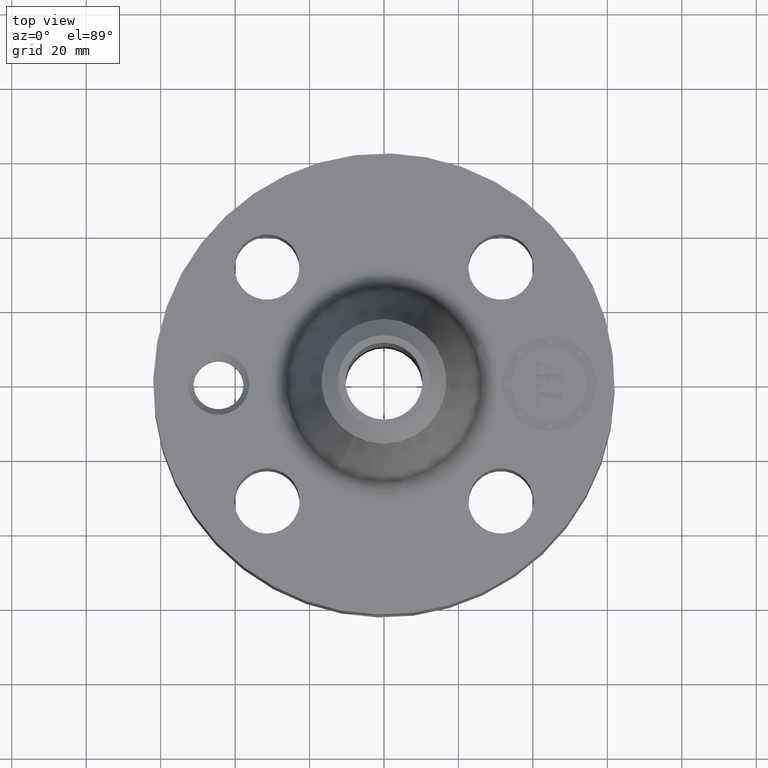
[diagram: clean part render]
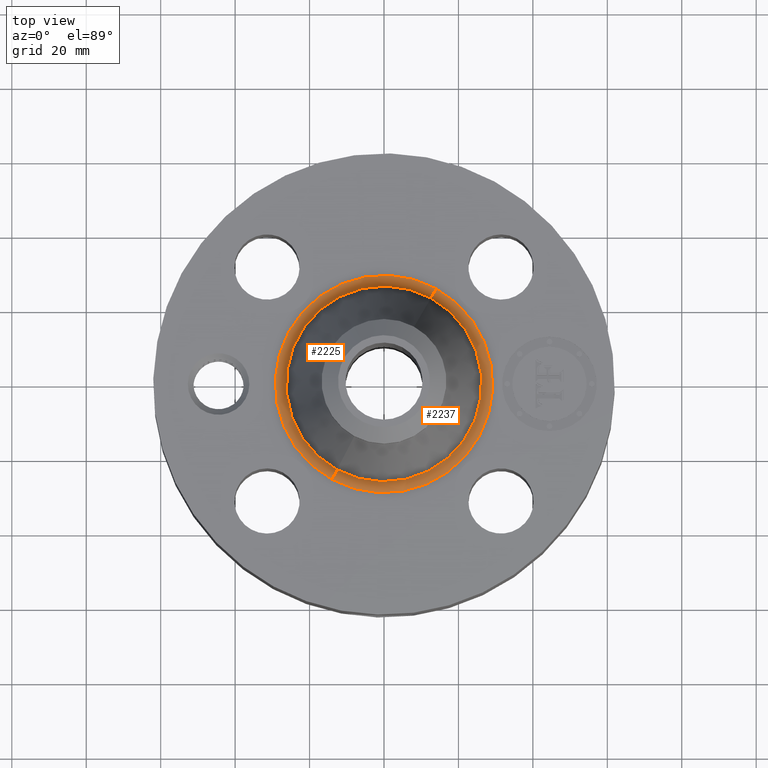
[diagram: same view with one multi-face feature highlighted, each face labeled with its STEP entity id]
A machine part, top view. The highlighted faces form ONE feature: a constant-radius fillet chain: 2 tangent blend faces with common blend radius 3.048 mm. The faces share edges in the B-rep.
Their STEP definitions:
[1] entity #2225 (Torus):
#1717=AXIS2_PLACEMENT_3D('Circle Axis2P3D',#1715,#1716,$) ;
#2198=AXIS2_PLACEMENT_3D('Torus Axis2P3D',#2195,#2196,#2197) ;
#2202=AXIS2_PLACEMENT_3D('Circle Axis2P3D',#2200,#2201,$) ;
#2211=AXIS2_PLACEMENT_3D('Circle Axis2P3D',#2209,#2210,$) ;
#2216=AXIS2_PLACEMENT_3D('Circle Axis2P3D',#2214,#2215,$) ;
#1715=CARTESIAN_POINT('Axis2P3D Location',(0.,0.,1.83660249647)) ;
#1719=CARTESIAN_POINT('Vertex',(-0.496160361728,-0.908215450144,1.83660249647)) ;
#1721=CARTESIAN_POINT('Vertex',(0.496160361728,0.908215450144,1.83660249647)) ;
#2195=CARTESIAN_POINT('Axis2P3D Location',(0.,0.,1.87000000001)) ;
#2200=CARTESIAN_POINT('Axis2P3D Location',(0.,0.,1.75000000001)) ;
#2204=CARTESIAN_POINT('Vertex',(-0.551418406817,-1.0093646232,1.75000000001)) ;
#2206=CARTESIAN_POINT('Vertex',(0.551418406817,1.0093646232,1.75000000001)) ;
#2209=CARTESIAN_POINT('Axis2P3D Location',(-0.551418406817,-1.0093646232,1.87000000001)) ;
#2214=CARTESIAN_POINT('Axis2P3D Location',(0.551418406817,1.0093646232,1.87000000001)) ;
#1716=DIRECTION('Axis2P3D Direction',(0.,0.,-0.0393700787402)) ;
#2196=DIRECTION('Axis2P3D Direction',(0.,0.,-0.0393700787402)) ;
#2197=DIRECTION('Axis2P3D XDirection',(0.0188750212049,0.0345504945626,0.)) ;
#2201=DIRECTION('Axis2P3D Direction',(0.,0.,-0.0393700787402)) ;
#2210=DIRECTION('Axis2P3D Direction',(0.0345504945626,-0.0188750212049,0.)) ;
#2215=DIRECTION('Axis2P3D Direction',(-0.0345504945626,0.0188750212049,0.)) ;
#2220=ORIENTED_EDGE('',*,*,#2208,.F.) ;
#2221=ORIENTED_EDGE('',*,*,#2213,.T.) ;
#2222=ORIENTED_EDGE('',*,*,#1723,.T.) ;
#2223=ORIENTED_EDGE('',*,*,#2218,.F.) ;
#2225=ADVANCED_FACE('PartBody',(#2224),#2199,.F.) ;
#1718=CIRCLE('generated circle',#1717,1.03490599014) ;
#2203=CIRCLE('generated circle',#2202,1.1501648586) ;
#2212=CIRCLE('generated circle',#2211,0.12) ;
#2217=CIRCLE('generated circle',#2216,0.12) ;
#2199=TOROIDAL_SURFACE('homeo Torus',#2198,1.1501648586,0.12) ;
#1723=EDGE_CURVE('',#1720,#1722,#1718,.T.) ;
#2208=EDGE_CURVE('',#2205,#2207,#2203,.T.) ;
#2213=EDGE_CURVE('',#2205,#1720,#2212,.T.) ;
#2218=EDGE_CURVE('',#2207,#1722,#2217,.T.) ;
#2219=EDGE_LOOP('',(#2220,#2221,#2222,#2223)) ;
#2224=FACE_OUTER_BOUND('',#2219,.T.) ;
#1720=VERTEX_POINT('',#1719) ;
#1722=VERTEX_POINT('',#1721) ;
#2205=VERTEX_POINT('',#2204) ;
#2207=VERTEX_POINT('',#2206) ;
[2] entity #2237 (Torus):
#1743=AXIS2_PLACEMENT_3D('Circle Axis2P3D',#1741,#1742,$) ;
#2198=AXIS2_PLACEMENT_3D('Torus Axis2P3D',#2195,#2196,#2197) ;
#2211=AXIS2_PLACEMENT_3D('Circle Axis2P3D',#2209,#2210,$) ;
#2216=AXIS2_PLACEMENT_3D('Circle Axis2P3D',#2214,#2215,$) ;
#2228=AXIS2_PLACEMENT_3D('Circle Axis2P3D',#2226,#2227,$) ;
#1719=CARTESIAN_POINT('Vertex',(-0.496160361728,-0.908215450144,1.83660249647)) ;
#1721=CARTESIAN_POINT('Vertex',(0.496160361728,0.908215450144,1.83660249647)) ;
#1741=CARTESIAN_POINT('Axis2P3D Location',(0.,0.,1.83660249647)) ;
#2195=CARTESIAN_POINT('Axis2P3D Location',(0.,0.,1.87000000001)) ;
#2204=CARTESIAN_POINT('Vertex',(-0.551418406817,-1.0093646232,1.75000000001)) ;
#2206=CARTESIAN_POINT('Vertex',(0.551418406817,1.0093646232,1.75000000001)) ;
#2209=CARTESIAN_POINT('Axis2P3D Location',(-0.551418406817,-1.0093646232,1.87000000001)) ;
#2214=CARTESIAN_POINT('Axis2P3D Location',(0.551418406817,1.0093646232,1.87000000001)) ;
#2226=CARTESIAN_POINT('Axis2P3D Location',(0.,0.,1.75000000001)) ;
#1742=DIRECTION('Axis2P3D Direction',(0.,0.,-0.0393700787402)) ;
#2196=DIRECTION('Axis2P3D Direction',(0.,0.,-0.0393700787402)) ;
#2197=DIRECTION('Axis2P3D XDirection',(0.0188750212049,0.0345504945626,0.)) ;
#2210=DIRECTION('Axis2P3D Direction',(0.0345504945626,-0.0188750212049,0.)) ;
#2215=DIRECTION('Axis2P3D Direction',(-0.0345504945626,0.0188750212049,0.)) ;
#2227=DIRECTION('Axis2P3D Direction',(0.,0.,-0.0393700787402)) ;
#2232=ORIENTED_EDGE('',*,*,#2230,.F.) ;
#2233=ORIENTED_EDGE('',*,*,#2218,.T.) ;
#2234=ORIENTED_EDGE('',*,*,#1745,.T.) ;
#2235=ORIENTED_EDGE('',*,*,#2213,.F.) ;
#2237=ADVANCED_FACE('PartBody',(#2236),#2199,.F.) ;
#1744=CIRCLE('generated circle',#1743,1.03490599014) ;
#2212=CIRCLE('generated circle',#2211,0.12) ;
#2217=CIRCLE('generated circle',#2216,0.12) ;
#2229=CIRCLE('generated circle',#2228,1.1501648586) ;
#2199=TOROIDAL_SURFACE('homeo Torus',#2198,1.1501648586,0.12) ;
#1745=EDGE_CURVE('',#1722,#1720,#1744,.T.) ;
#2213=EDGE_CURVE('',#2205,#1720,#2212,.T.) ;
#2218=EDGE_CURVE('',#2207,#1722,#2217,.T.) ;
#2230=EDGE_CURVE('',#2207,#2205,#2229,.T.) ;
#2231=EDGE_LOOP('',(#2232,#2233,#2234,#2235)) ;
#2236=FACE_OUTER_BOUND('',#2231,.T.) ;
#1720=VERTEX_POINT('',#1719) ;
#1722=VERTEX_POINT('',#1721) ;
#2205=VERTEX_POINT('',#2204) ;
#2207=VERTEX_POINT('',#2206) ;